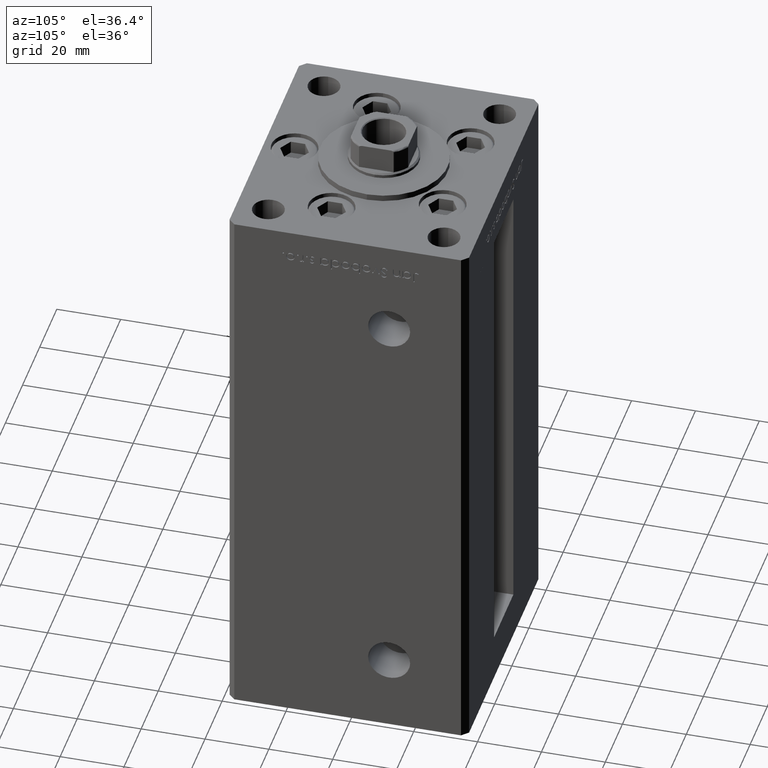
[diagram: clean part render]
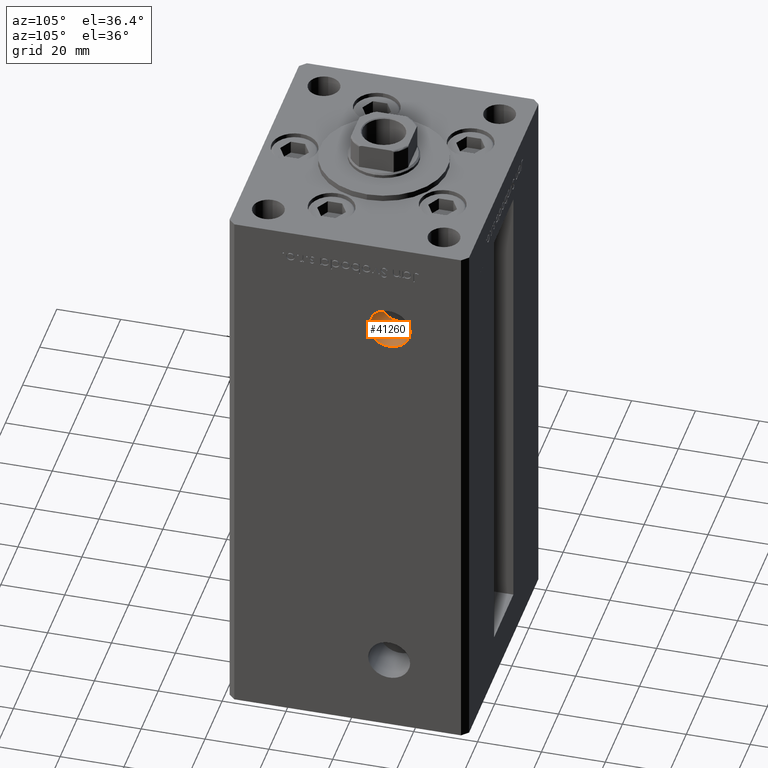
[diagram: same view with one face highlighted and labeled with its STEP entity id]
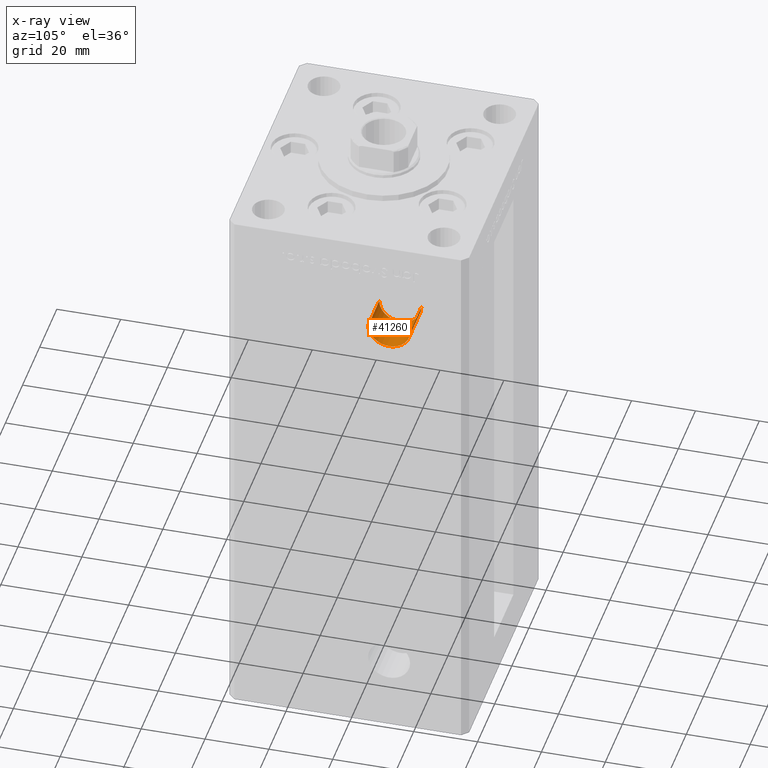
[diagram: x-ray of the same camera — body ghosted, the highlighted face saturated]
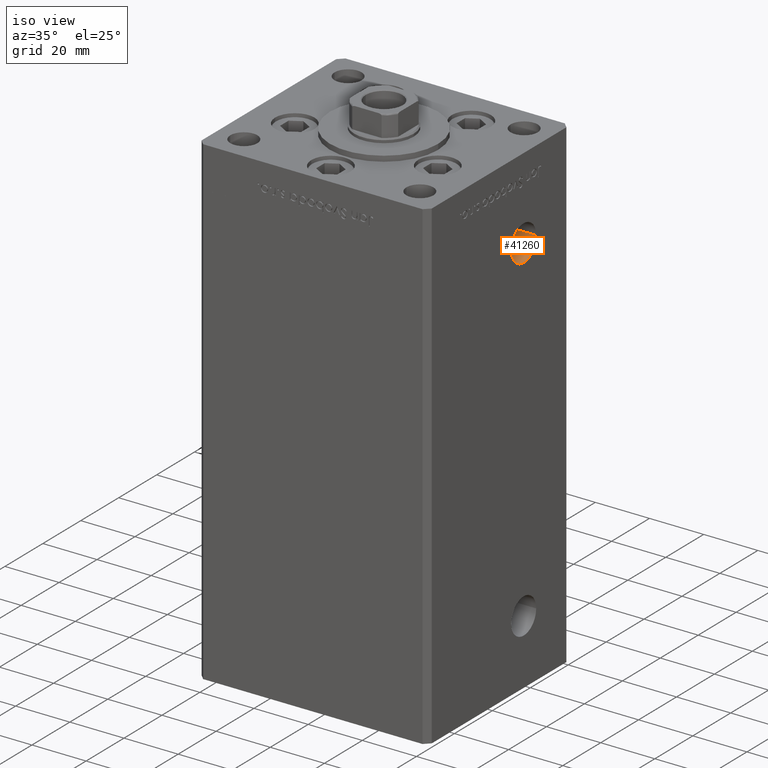
[diagram: same view with one face highlighted and labeled with its STEP entity id]
A machine part, auxiliary view. The second image highlights one B-rep face of the part: STEP entity #41260.
The next image is the same camera in x-ray: the body ghosted, the highlighted face saturated — about 0% of this face is hidden behind the body in this view.
A second angle (iso view) of the same face is appended — the face is thin or edge-on in the first view.
In plain terms, the highlighted cylindrical surface (edge-blend (fillet) strip) has radius 6.58 mm, axis along (1, -0, 0).
Its self-contained STEP definition (entity closure, byte-faithful):
#598 = DIRECTION ( 'NONE',  ( 0.000000000000000000, 1.000000000000000000, 0.000000000000000000 ) ) ;
#636 = DIRECTION ( 'NONE',  ( 0.000000000000000000, 1.000000000000000000, 0.000000000000000000 ) ) ;
#2157 = CARTESIAN_POINT ( 'NONE',  ( 29.50000000000000000, 6.419999999999987494, 133.5000000000000000 ) ) ;
#6313 = AXIS2_PLACEMENT_3D ( 'NONE', #9047, #36756, #598 ) ;
#9047 = CARTESIAN_POINT ( 'NONE',  ( 42.49999999999999289, 13.00000000000000000, 133.5000000000000000 ) ) ;
#10899 = DIRECTION ( 'NONE',  ( 1.000000000000000000, -2.275047181608927644E-16, -0.000000000000000000 ) ) ;
#15513 = VERTEX_POINT ( 'NONE', #37819 ) ;
#17987 = LINE ( 'NONE', #2157, #35882 ) ;
#18818 = ORIENTED_EDGE ( 'NONE', *, *, #43764, .F. ) ;
#19209 = AXIS2_PLACEMENT_3D ( 'NONE', #41550, #21478, #636 ) ;
#21232 = CARTESIAN_POINT ( 'NONE',  ( 29.50000000000000000, 6.419999999999987494, 133.5000000000000000 ) ) ;
#21478 = DIRECTION ( 'NONE',  ( 1.000000000000000000, -2.275047181608927644E-16, 0.000000000000000000 ) ) ;
#21663 = AXIS2_PLACEMENT_3D ( 'NONE', #47764, #28485, #51963 ) ;
#23139 = CARTESIAN_POINT ( 'NONE',  ( 42.49999999999999289, 6.419999999999983942, 133.5000000000000000 ) ) ;
#24188 = VERTEX_POINT ( 'NONE', #21232 ) ;
#26683 = ORIENTED_EDGE ( 'NONE', *, *, #37167, .T. ) ;
#27057 = CARTESIAN_POINT ( 'NONE',  ( 29.50000000000000000, 19.58000000000001606, 133.5000000000000000 ) ) ;
#28224 = CIRCLE ( 'NONE', #6313, 6.580000000000014282 ) ;
#28370 = EDGE_LOOP ( 'NONE', ( #18818, #26683, #49131, #50627 ) ) ;
#28485 = DIRECTION ( 'NONE',  ( 1.000000000000000000, -2.275047181608927644E-16, -0.000000000000000000 ) ) ;
#29918 = CARTESIAN_POINT ( 'NONE',  ( 29.50000000000000000, 19.58000000000001606, 133.5000000000000000 ) ) ;
#33420 = EDGE_CURVE ( 'NONE', #40117, #15513, #28224, .T. ) ;
#34095 = DIRECTION ( 'NONE',  ( 1.000000000000000000, -2.275047181608927644E-16, -0.000000000000000000 ) ) ;
#35882 = VECTOR ( 'NONE', #34095, 1000.000000000000000 ) ;
#35902 = FACE_OUTER_BOUND ( 'NONE', #28370, .T. ) ;
#36756 = DIRECTION ( 'NONE',  ( 1.000000000000000000, -2.275047181608927644E-16, 0.000000000000000000 ) ) ;
#37167 = EDGE_CURVE ( 'NONE', #24188, #40117, #17987, .T. ) ;
#37819 = CARTESIAN_POINT ( 'NONE',  ( 42.49999999999999289, 19.58000000000001251, 133.5000000000000000 ) ) ;
#40117 = VERTEX_POINT ( 'NONE', #23139 ) ;
#40124 = CYLINDRICAL_SURFACE ( 'NONE', #21663, 6.580000000000014282 ) ;
#41260 = ADVANCED_FACE ( 'NONE', ( #35902 ), #40124, .F. ) ;
#41550 = CARTESIAN_POINT ( 'NONE',  ( 29.50000000000000000, 13.00000000000000355, 133.5000000000000000 ) ) ;
#43764 = EDGE_CURVE ( 'NONE', #24188, #47993, #44503, .T. ) ;
#43994 = EDGE_CURVE ( 'NONE', #47993, #15513, #46271, .T. ) ;
#44503 = CIRCLE ( 'NONE', #19209, 6.580000000000014282 ) ;
#46271 = LINE ( 'NONE', #29918, #49528 ) ;
#47764 = CARTESIAN_POINT ( 'NONE',  ( 29.50000000000000000, 13.00000000000000355, 133.5000000000000000 ) ) ;
#47993 = VERTEX_POINT ( 'NONE', #27057 ) ;
#49131 = ORIENTED_EDGE ( 'NONE', *, *, #33420, .T. ) ;
#49528 = VECTOR ( 'NONE', #10899, 1000.000000000000000 ) ;
#50627 = ORIENTED_EDGE ( 'NONE', *, *, #43994, .F. ) ;
#51963 = DIRECTION ( 'NONE',  ( 0.000000000000000000, 1.000000000000000000, 0.000000000000000000 ) ) ;